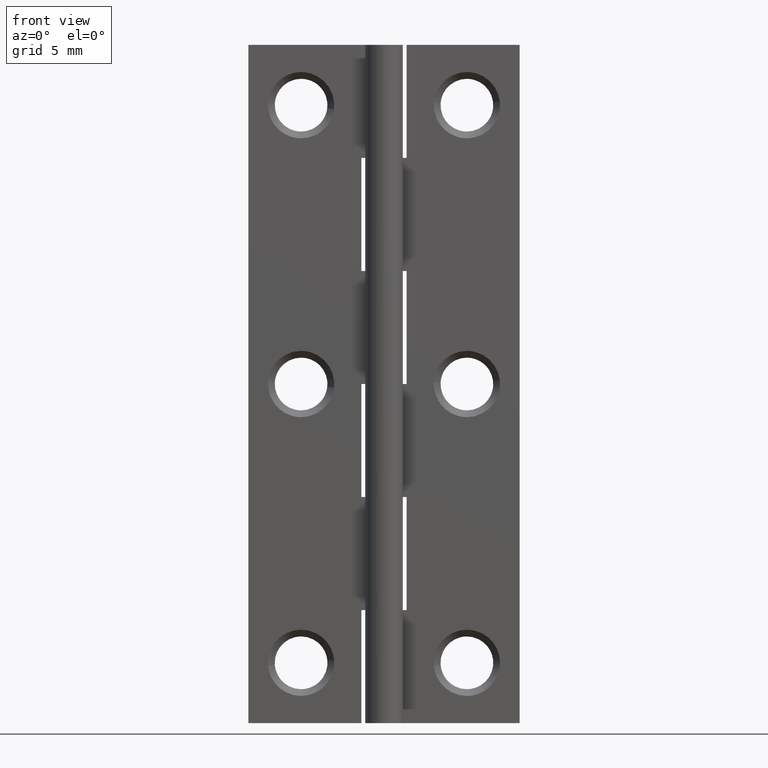
[diagram: clean part render]
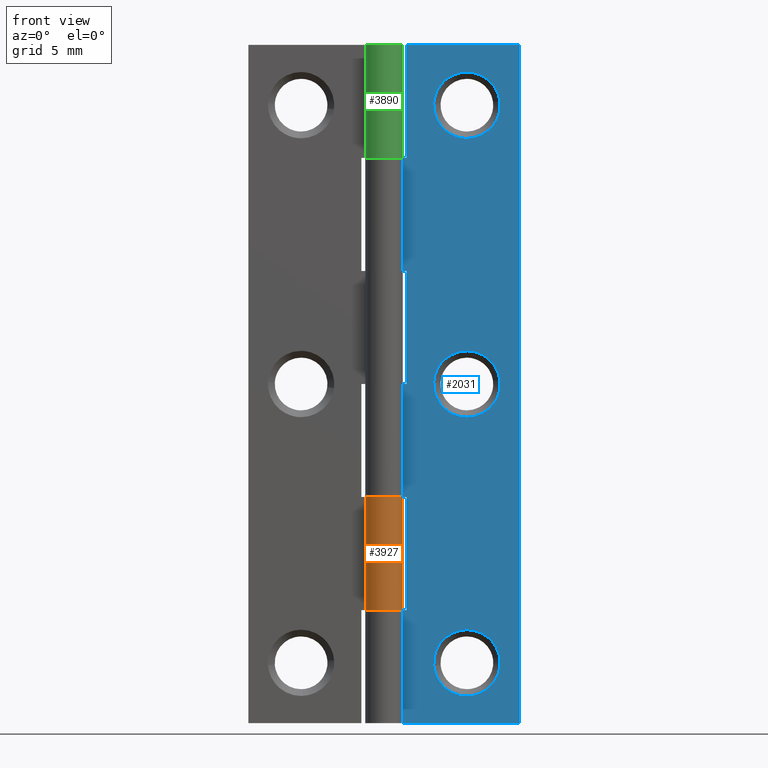
[diagram: same view with three faces highlighted in distinct colors, each labeled with its STEP entity id]
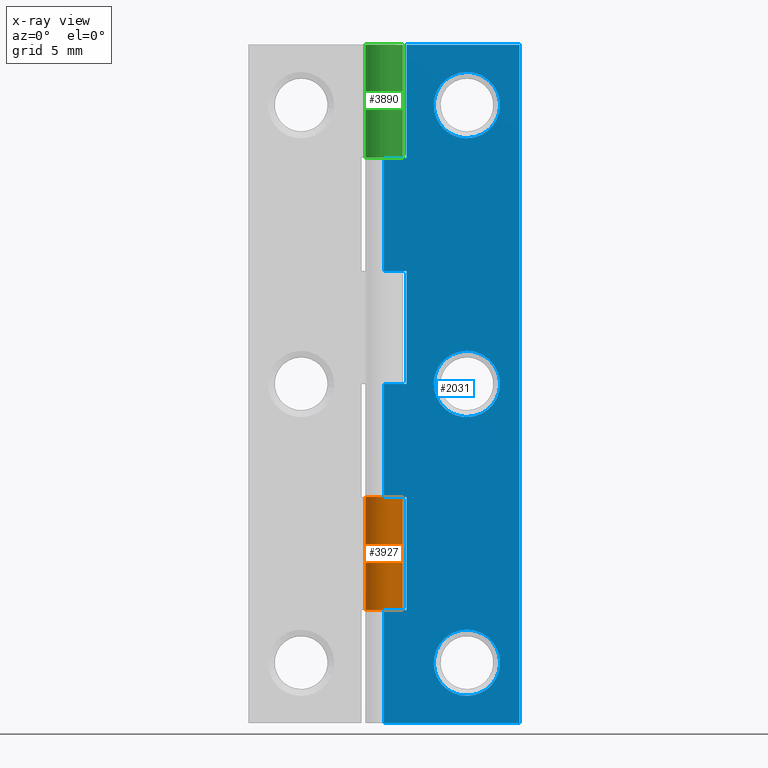
[diagram: x-ray of the same camera — body ghosted, the three highlighted faces saturated]
A machine part, front view with three faces highlighted in distinct colors.
The next image is the same camera in x-ray (body ghosted, the three faces saturated) — at least one of them is partly hidden behind the body in this view.
Their STEP definitions:

[orange] entity #3927 — the highlighted face is a freeform B-spline surface patch.
#3580=CARTESIAN_POINT('',(-1.035615758860396,0.700000000000000,15.0));
#3581=VERTEX_POINT('',#3580);
#3587=CARTESIAN_POINT('',(0.0,1.249999999999972,15.0));
#3588=VERTEX_POINT('',#3587);
#3589=CARTESIAN_POINT('',(0.0,1.250000000000000,15.0));
#3590=CARTESIAN_POINT('',(0.976852103636802,1.250000000000000,14.999999999999996));
#3591=CARTESIAN_POINT('',(1.212943245861843,0.302107070950246,15.0));
#3592=CARTESIAN_POINT('',(1.449034388086884,-0.645785858099508,14.999999999999996));
#3593=CARTESIAN_POINT('',(0.586301969977928,-1.103970108290981,15.0));
#3594=CARTESIAN_POINT('',(-0.276430448131027,-1.562154358482455,14.999999999999996));
#3595=CARTESIAN_POINT('',(-0.929541692514018,-0.835734552282107,15.0));
#3596=CARTESIAN_POINT('',(-1.582652936897008,-0.109314746081762,14.999999999999996));
#3597=CARTESIAN_POINT('',(-1.035615758860398,0.700000000000001,15.0));
#3605=(BOUNDED_CURVE()B_SPLINE_CURVE(2,(#3589,#3590,#3591,#3592,#3593,#3594,#3595,#3596,#3597),.UNSPECIFIED.,.F.,.U.)B_SPLINE_CURVE_WITH_KNOTS((3,2,2,2,3),(0.0,0.250000000000000,0.500000000000000,0.750000000000000,1.0),.UNSPECIFIED.)CURVE()GEOMETRIC_REPRESENTATION_ITEM()RATIONAL_B_SPLINE_CURVE((1.0,0.787935802194632,1.0,0.787935802194632,1.0,0.787935802194632,1.0,0.787935802194632,1.0))REPRESENTATION_ITEM(''));
#3606=EDGE_CURVE('',#3588,#3581,#3605,.T.);
#3664=CARTESIAN_POINT('',(0.0,1.249999999999972,7.500000000000000));
#3665=VERTEX_POINT('',#3664);
#3671=CARTESIAN_POINT('',(-1.035615758860396,0.700000000000000,7.500000000000000));
#3672=VERTEX_POINT('',#3671);
#3673=CARTESIAN_POINT('',(-1.035615758860398,0.700000000000002,7.500000000000000));
#3674=CARTESIAN_POINT('',(-1.582652936897009,-0.109314746081761,7.500000000000001));
#3675=CARTESIAN_POINT('',(-0.929541692514019,-0.835734552282107,7.500000000000000));
#3676=CARTESIAN_POINT('',(-0.276430448131029,-1.562154358482453,7.500000000000001));
#3677=CARTESIAN_POINT('',(0.586301969977927,-1.103970108290982,7.500000000000000));
#3678=CARTESIAN_POINT('',(1.449034388086884,-0.645785858099510,7.500000000000001));
#3679=CARTESIAN_POINT('',(1.212943245861843,0.302107070950246,7.500000000000000));
#3680=CARTESIAN_POINT('',(0.976852103636803,1.250000000000000,7.500000000000001));
#3681=CARTESIAN_POINT('',(0.0,1.249999999999972,7.500000000000000));
#3689=(BOUNDED_CURVE()B_SPLINE_CURVE(2,(#3673,#3674,#3675,#3676,#3677,#3678,#3679,#3680,#3681),.UNSPECIFIED.,.F.,.U.)B_SPLINE_CURVE_WITH_KNOTS((3,2,2,2,3),(0.0,0.250000000000000,0.500000000000000,0.750000000000000,1.0),.UNSPECIFIED.)CURVE()GEOMETRIC_REPRESENTATION_ITEM()RATIONAL_B_SPLINE_CURVE((1.0,0.787935802194633,1.0,0.787935802194633,1.0,0.787935802194633,1.0,0.787935802194633,1.0))REPRESENTATION_ITEM(''));
#3690=EDGE_CURVE('',#3672,#3665,#3689,.T.);
#3891=CARTESIAN_POINT('',(-1.004821075771521,0.743528483439176,15.187500000000000));
#3892=CARTESIAN_POINT('',(-1.004821075771521,0.743528483439176,7.307812499999999));
#3893=CARTESIAN_POINT('',(-1.950809181486082,-0.534901068653333,15.187500000000002));
#3894=CARTESIAN_POINT('',(-1.950809181486082,-0.534901068653333,7.307812499999999));
#3895=CARTESIAN_POINT('',(-0.485064798854316,-1.152046935203779,15.187500000000000));
#3896=CARTESIAN_POINT('',(-0.485064798854316,-1.152046935203779,7.307812499999999));
#3897=CARTESIAN_POINT('',(0.980679583777450,-1.769192801754226,15.187500000000002));
#3898=CARTESIAN_POINT('',(0.980679583777450,-1.769192801754226,7.307812499999999));
#3899=CARTESIAN_POINT('',(1.234036391396717,-0.199133585084404,15.187500000000000));
#3900=CARTESIAN_POINT('',(1.234036391396717,-0.199133585084404,7.307812499999999));
#3901=CARTESIAN_POINT('',(1.487393199015984,1.370925631585418,15.187500000000002));
#3902=CARTESIAN_POINT('',(1.487393199015984,1.370925631585418,7.307812499999999));
#3903=CARTESIAN_POINT('',(-0.098073869659805,1.246146667166410,15.187500000000000));
#3904=CARTESIAN_POINT('',(-0.098073869659805,1.246146667166410,7.307812499999999));
#3912=(BOUNDED_SURFACE()B_SPLINE_SURFACE(1,2,((#3891,#3893,#3895,#3897,#3899,#3901,#3903),(#3892,#3894,#3896,#3898,#3900,#3902,#3904)),.UNSPECIFIED.,.F.,.F.,.U.)B_SPLINE_SURFACE_WITH_KNOTS((2,2),(3,2,2,3),(0.0,7.879687500000003),(0.0,2.429667178109279,4.859334356218558,7.289001534327838),.UNSPECIFIED.)GEOMETRIC_REPRESENTATION_ITEM()RATIONAL_B_SPLINE_SURFACE(((1.0,0.617951097721073,1.0,0.617951097721073,1.0,0.617951097721073,1.0),(1.0,0.617951097721073,1.0,0.617951097721073,1.0,0.617951097721073,1.0)))REPRESENTATION_ITEM('')SURFACE());
#3913=ORIENTED_EDGE('',*,*,#3606,.T.);
#3914=CARTESIAN_POINT('',(-1.035615758860396,0.700000000000000,15.0));
#3915=CARTESIAN_POINT('',(-1.035615758860396,0.700000000000000,7.500000000000000));
#3916=QUASI_UNIFORM_CURVE('',1,(#3914,#3915),.UNSPECIFIED.,.F.,.U.);
#3917=EDGE_CURVE('',#3581,#3672,#3916,.T.);
#3918=ORIENTED_EDGE('',*,*,#3917,.T.);
#3919=ORIENTED_EDGE('',*,*,#3690,.T.);
#3920=CARTESIAN_POINT('',(0.0,1.249999999999972,15.0));
#3921=CARTESIAN_POINT('',(0.0,1.249999999999972,7.500000000000000));
#3922=QUASI_UNIFORM_CURVE('',1,(#3920,#3921),.UNSPECIFIED.,.F.,.U.);
#3923=EDGE_CURVE('',#3588,#3665,#3922,.T.);
#3924=ORIENTED_EDGE('',*,*,#3923,.F.);
#3925=EDGE_LOOP('',(#3913,#3918,#3919,#3924));
#3926=FACE_OUTER_BOUND('',#3925,.T.);
#3927=ADVANCED_FACE('',(#3926),#3912,.T.);

[blue] entity #2031 — the highlighted face is a freeform B-spline surface patch.
#326=CARTESIAN_POINT('',(7.685632225558621,0.749999999999847,41.251021462429691));
#327=VERTEX_POINT('',#326);
#333=CARTESIAN_POINT('',(5.500000000000000,0.750000000000000,43.200000000000003));
#334=VERTEX_POINT('',#333);
#335=CARTESIAN_POINT('',(7.685632225558621,0.749999999999847,41.251021462429691));
#336=CARTESIAN_POINT('',(7.461790612580012,0.750000000000000,43.199999999999996));
#337=CARTESIAN_POINT('',(5.500000000000000,0.750000000000000,43.200000000000003));
#345=(BOUNDED_CURVE()B_SPLINE_CURVE(2,(#335,#336,#337),.UNSPECIFIED.,.F.,.U.)B_SPLINE_CURVE_WITH_KNOTS((3,3),(0.269767755876746,0.500000000000000),.UNSPECIFIED.)CURVE()GEOMETRIC_REPRESENTATION_ITEM()RATIONAL_B_SPLINE_CURVE((0.957343736460394,0.730266147776382,1.0))REPRESENTATION_ITEM(''));
#346=EDGE_CURVE('',#327,#334,#345,.T.);
#348=CARTESIAN_POINT('',(3.304103443468190,0.749999999994797,41.134306787001357));
#349=VERTEX_POINT('',#348);
#350=CARTESIAN_POINT('',(5.500000000000000,0.750000000000000,43.200000000000003));
#351=CARTESIAN_POINT('',(3.430446652853460,0.750000000000000,43.200000000000010));
#352=CARTESIAN_POINT('',(3.304103443468190,0.749999999994797,41.134306787001357));
#360=(BOUNDED_CURVE()B_SPLINE_CURVE(2,(#350,#351,#352),.UNSPECIFIED.,.F.,.U.)B_SPLINE_CURVE_WITH_KNOTS((3,3),(0.500000000000000,0.739332962238141),.UNSPECIFIED.)CURVE()GEOMETRIC_REPRESENTATION_ITEM()RATIONAL_B_SPLINE_CURVE((1.0,0.719603993287649,0.976072041665000))REPRESENTATION_ITEM(''));
#361=EDGE_CURVE('',#334,#349,#360,.T.);
#456=CARTESIAN_POINT('',(5.500000000000000,0.750000000000000,38.799999999999997));
#457=VERTEX_POINT('',#456);
#458=CARTESIAN_POINT('',(3.304103443468190,0.749999999994797,41.134306787001364));
#459=CARTESIAN_POINT('',(3.300000000000000,0.750000000000000,41.067216079281316));
#460=CARTESIAN_POINT('',(3.299999999999999,0.750000000000000,41.0));
#461=CARTESIAN_POINT('',(3.300000000000000,0.750000000000000,38.800000000000004));
#462=CARTESIAN_POINT('',(5.500000000000000,0.750000000000000,38.799999999999997));
#470=(BOUNDED_CURVE()B_SPLINE_CURVE(2,(#458,#459,#460,#461,#462),.UNSPECIFIED.,.F.,.U.)B_SPLINE_CURVE_WITH_KNOTS((3,2,3),(0.739332962238142,0.750000000000000,1.0),.UNSPECIFIED.)CURVE()GEOMETRIC_REPRESENTATION_ITEM()RATIONAL_B_SPLINE_CURVE((0.976072041665000,0.987502787898899,1.0,0.707106781186548,1.0))REPRESENTATION_ITEM(''));
#471=EDGE_CURVE('',#349,#457,#470,.T.);
#473=CARTESIAN_POINT('',(5.500000000000000,0.750000000000000,38.799999999999997));
#474=CARTESIAN_POINT('',(7.700000000000000,0.750000000000000,38.800000000000004));
#475=CARTESIAN_POINT('',(7.700000000000000,0.750000000000000,41.0));
#476=CARTESIAN_POINT('',(7.700000000000000,0.750000000000000,41.125921917056544));
#477=CARTESIAN_POINT('',(7.685632225558621,0.749999999999847,41.251021462429705));
#485=(BOUNDED_CURVE()B_SPLINE_CURVE(2,(#473,#474,#475,#476,#477),.UNSPECIFIED.,.F.,.U.)B_SPLINE_CURVE_WITH_KNOTS((3,2,3),(0.0,0.250000000000000,0.269767755876746),.UNSPECIFIED.)CURVE()GEOMETRIC_REPRESENTATION_ITEM()RATIONAL_B_SPLINE_CURVE((1.0,0.707106781186548,1.0,0.976840633410165,0.957343736460393))REPRESENTATION_ITEM(''));
#486=EDGE_CURVE('',#457,#327,#485,.T.);
#654=CARTESIAN_POINT('',(7.685632225558621,0.749999999999847,22.751021462429691));
#655=VERTEX_POINT('',#654);
#661=CARTESIAN_POINT('',(5.500000000000000,0.750000000000000,24.699999999999999));
#662=VERTEX_POINT('',#661);
#663=CARTESIAN_POINT('',(7.685632225558621,0.749999999999847,22.751021462429694));
#664=CARTESIAN_POINT('',(7.461790612580018,0.750000000000000,24.700000000000003));
#665=CARTESIAN_POINT('',(5.500000000000000,0.750000000000000,24.699999999999999));
#673=(BOUNDED_CURVE()B_SPLINE_CURVE(2,(#663,#664,#665),.UNSPECIFIED.,.F.,.U.)B_SPLINE_CURVE_WITH_KNOTS((3,3),(0.269767755876746,0.500000000000000),.UNSPECIFIED.)CURVE()GEOMETRIC_REPRESENTATION_ITEM()RATIONAL_B_SPLINE_CURVE((0.957343736460394,0.730266147776382,1.0))REPRESENTATION_ITEM(''));
#674=EDGE_CURVE('',#655,#662,#673,.T.);
#676=CARTESIAN_POINT('',(3.304103443468189,0.749999999994797,22.634306787001350));
#677=VERTEX_POINT('',#676);
#678=CARTESIAN_POINT('',(5.500000000000000,0.750000000000000,24.699999999999999));
#679=CARTESIAN_POINT('',(3.430446652853432,0.750000000000000,24.700000000000003));
#680=CARTESIAN_POINT('',(3.304103443468189,0.749999999994797,22.634306787001357));
#688=(BOUNDED_CURVE()B_SPLINE_CURVE(2,(#678,#679,#680),.UNSPECIFIED.,.F.,.U.)B_SPLINE_CURVE_WITH_KNOTS((3,3),(0.500000000000000,0.739332962238143),.UNSPECIFIED.)CURVE()GEOMETRIC_REPRESENTATION_ITEM()RATIONAL_B_SPLINE_CURVE((1.0,0.719603993287647,0.976072041665004))REPRESENTATION_ITEM(''));
#689=EDGE_CURVE('',#662,#677,#688,.T.);
#784=CARTESIAN_POINT('',(5.500000000000000,0.750000000000000,20.300000000000001));
#785=VERTEX_POINT('',#784);
#786=CARTESIAN_POINT('',(3.304103443468189,0.749999999994797,22.634306787001350));
#787=CARTESIAN_POINT('',(3.299999999999999,0.750000000000000,22.567216079281309));
#788=CARTESIAN_POINT('',(3.299999999999999,0.750000000000000,22.500000000000000));
#789=CARTESIAN_POINT('',(3.300000000000000,0.750000000000000,20.299999999999990));
#790=CARTESIAN_POINT('',(5.500000000000000,0.750000000000000,20.300000000000001));
#798=(BOUNDED_CURVE()B_SPLINE_CURVE(2,(#786,#787,#788,#789,#790),.UNSPECIFIED.,.F.,.U.)B_SPLINE_CURVE_WITH_KNOTS((3,2,3),(0.739332962238142,0.750000000000000,1.0),.UNSPECIFIED.)CURVE()GEOMETRIC_REPRESENTATION_ITEM()RATIONAL_B_SPLINE_CURVE((0.976072041665002,0.987502787898900,1.0,0.707106781186548,1.0))REPRESENTATION_ITEM(''));
#799=EDGE_CURVE('',#677,#785,#798,.T.);
#801=CARTESIAN_POINT('',(5.500000000000000,0.750000000000000,20.300000000000001));
#802=CARTESIAN_POINT('',(7.700000000000000,0.750000000000000,20.299999999999990));
#803=CARTESIAN_POINT('',(7.700000000000000,0.750000000000000,22.500000000000000));
#804=CARTESIAN_POINT('',(7.700000000000000,0.750000000000000,22.625921917056534));
#805=CARTESIAN_POINT('',(7.685632225558621,0.749999999999847,22.751021462429694));
#813=(BOUNDED_CURVE()B_SPLINE_CURVE(2,(#801,#802,#803,#804,#805),.UNSPECIFIED.,.F.,.U.)B_SPLINE_CURVE_WITH_KNOTS((3,2,3),(0.0,0.250000000000000,0.269767755876746),.UNSPECIFIED.)CURVE()GEOMETRIC_REPRESENTATION_ITEM()RATIONAL_B_SPLINE_CURVE((1.0,0.707106781186548,1.0,0.976840633410165,0.957343736460394))REPRESENTATION_ITEM(''));
#814=EDGE_CURVE('',#785,#655,#813,.T.);
#988=CARTESIAN_POINT('',(6.683271745706598,0.749999999992486,2.145311892569125));
#989=VERTEX_POINT('',#988);
#995=CARTESIAN_POINT('',(5.500000000000000,0.750000000000000,6.200000000000001));
#996=VERTEX_POINT('',#995);
#997=CARTESIAN_POINT('',(5.500000000000000,0.750000000000000,6.200000000000001));
#998=CARTESIAN_POINT('',(7.700000000000000,0.750000000000000,6.200000000000001));
#999=CARTESIAN_POINT('',(7.700000000000000,0.750000000000000,4.0));
#1000=CARTESIAN_POINT('',(7.700000000000000,0.750000000000000,2.793973956954153));
#1001=CARTESIAN_POINT('',(6.683271745706598,0.749999999992486,2.145311892569126));
#1009=(BOUNDED_CURVE()B_SPLINE_CURVE(2,(#997,#998,#999,#1000,#1001),.UNSPECIFIED.,.F.,.U.)B_SPLINE_CURVE_WITH_KNOTS((3,2,3),(0.0,0.250000000000000,0.407950112607662),.UNSPECIFIED.)CURVE()GEOMETRIC_REPRESENTATION_ITEM()RATIONAL_B_SPLINE_CURVE((1.0,0.707106781186548,1.0,0.814949932425578,0.863729296942640))REPRESENTATION_ITEM(''));
#1010=EDGE_CURVE('',#996,#989,#1009,.T.);
#1012=CARTESIAN_POINT('',(3.306781865765292,0.749999999945224,3.827389988977925));
#1013=VERTEX_POINT('',#1012);
#1014=CARTESIAN_POINT('',(3.306781865765292,0.749999999945224,3.827389988977925));
#1015=CARTESIAN_POINT('',(3.299999999999999,0.750000000000000,3.913561764164677));
#1016=CARTESIAN_POINT('',(3.299999999999999,0.750000000000000,4.0));
#1017=CARTESIAN_POINT('',(3.300000000000000,0.750000000000000,6.200000000000001));
#1018=CARTESIAN_POINT('',(5.500000000000000,0.750000000000000,6.200000000000001));
#1026=(BOUNDED_CURVE()B_SPLINE_CURVE(2,(#1014,#1015,#1016,#1017,#1018),.UNSPECIFIED.,.F.,.U.)B_SPLINE_CURVE_WITH_KNOTS((3,2,3),(0.736331300567656,0.750000000000000,1.0),.UNSPECIFIED.)CURVE()GEOMETRIC_REPRESENTATION_ITEM()RATIONAL_B_SPLINE_CURVE((0.969723356035934,0.983986122505068,1.0,0.707106781186548,1.0))REPRESENTATION_ITEM(''));
#1027=EDGE_CURVE('',#1013,#996,#1026,.T.);
#1131=CARTESIAN_POINT('',(5.500000000000000,0.750000000000000,1.800000000000000));
#1132=VERTEX_POINT('',#1131);
#1133=CARTESIAN_POINT('',(5.500000000000000,0.750000000000000,1.800000000000000));
#1134=CARTESIAN_POINT('',(3.466340919126763,0.750000000000000,1.800000000000000));
#1135=CARTESIAN_POINT('',(3.306781865765292,0.749999999945224,3.827389988977925));
#1143=(BOUNDED_CURVE()B_SPLINE_CURVE(2,(#1133,#1134,#1135),.UNSPECIFIED.,.F.,.U.)B_SPLINE_CURVE_WITH_KNOTS((3,3),(0.500000000000000,0.736331300567656),.UNSPECIFIED.)CURVE()GEOMETRIC_REPRESENTATION_ITEM()RATIONAL_B_SPLINE_CURVE((1.0,0.723120658681479,0.969723356035934))REPRESENTATION_ITEM(''));
#1144=EDGE_CURVE('',#1132,#1013,#1143,.T.);
#1146=CARTESIAN_POINT('',(6.683271745706598,0.749999999992486,2.145311892569126));
#1147=CARTESIAN_POINT('',(6.142021721990017,0.750000000000000,1.800000000000000));
#1148=CARTESIAN_POINT('',(5.500000000000000,0.750000000000000,1.800000000000000));
#1156=(BOUNDED_CURVE()B_SPLINE_CURVE(2,(#1146,#1147,#1148),.UNSPECIFIED.,.F.,.U.)B_SPLINE_CURVE_WITH_KNOTS((3,3),(0.407950112607662,0.500000000000000),.UNSPECIFIED.)CURVE()GEOMETRIC_REPRESENTATION_ITEM()RATIONAL_B_SPLINE_CURVE((0.863729296942640,0.892156848760969,1.0))REPRESENTATION_ITEM(''));
#1157=EDGE_CURVE('',#989,#1132,#1156,.T.);
#1296=CARTESIAN_POINT('',(1.500000000000000,0.750000000000028,22.500000000000000));
#1297=VERTEX_POINT('',#1296);
#1340=CARTESIAN_POINT('',(0.0,0.750000000000000,22.500000000000000));
#1341=VERTEX_POINT('',#1340);
#1361=CARTESIAN_POINT('',(1.500000000000000,0.750000000000028,22.500000000000000));
#1362=CARTESIAN_POINT('',(0.0,0.750000000000000,22.500000000000000));
#1363=QUASI_UNIFORM_CURVE('',1,(#1361,#1362),.UNSPECIFIED.,.F.,.U.);
#1364=EDGE_CURVE('',#1297,#1341,#1363,.T.);
#1376=CARTESIAN_POINT('',(0.0,0.750000000000000,30.0));
#1377=VERTEX_POINT('',#1376);
#1432=CARTESIAN_POINT('',(1.500000000000000,0.750000000000028,30.0));
#1433=VERTEX_POINT('',#1432);
#1439=CARTESIAN_POINT('',(0.0,0.750000000000000,30.0));
#1440=CARTESIAN_POINT('',(1.500000000000000,0.750000000000028,30.0));
#1441=QUASI_UNIFORM_CURVE('',1,(#1439,#1440),.UNSPECIFIED.,.F.,.U.);
#1442=EDGE_CURVE('',#1377,#1433,#1441,.T.);
#1459=CARTESIAN_POINT('',(1.500000000000000,0.750000000000028,30.0));
#1460=CARTESIAN_POINT('',(1.500000000000000,0.750000000000028,22.500000000000000));
#1461=QUASI_UNIFORM_CURVE('',1,(#1459,#1460),.UNSPECIFIED.,.F.,.U.);
#1462=EDGE_CURVE('',#1433,#1297,#1461,.T.);
#1472=CARTESIAN_POINT('',(1.500000000000000,0.750000000000028,7.500000000000000));
#1473=VERTEX_POINT('',#1472);
#1516=CARTESIAN_POINT('',(0.0,0.750000000000000,7.500000000000000));
#1517=VERTEX_POINT('',#1516);
#1537=CARTESIAN_POINT('',(1.500000000000000,0.750000000000028,7.500000000000000));
#1538=CARTESIAN_POINT('',(0.0,0.750000000000000,7.500000000000000));
#1539=QUASI_UNIFORM_CURVE('',1,(#1537,#1538),.UNSPECIFIED.,.F.,.U.);
#1540=EDGE_CURVE('',#1473,#1517,#1539,.T.);
#1552=CARTESIAN_POINT('',(0.0,0.750000000000000,15.0));
#1553=VERTEX_POINT('',#1552);
#1608=CARTESIAN_POINT('',(1.500000000000000,0.750000000000028,15.0));
#1609=VERTEX_POINT('',#1608);
#1615=CARTESIAN_POINT('',(0.0,0.750000000000000,15.0));
#1616=CARTESIAN_POINT('',(1.500000000000000,0.750000000000028,15.0));
#1617=QUASI_UNIFORM_CURVE('',1,(#1615,#1616),.UNSPECIFIED.,.F.,.U.);
#1618=EDGE_CURVE('',#1553,#1609,#1617,.T.);
#1635=CARTESIAN_POINT('',(1.500000000000000,0.750000000000028,15.0));
#1636=CARTESIAN_POINT('',(1.500000000000000,0.750000000000028,7.500000000000000));
#1637=QUASI_UNIFORM_CURVE('',1,(#1635,#1636),.UNSPECIFIED.,.F.,.U.);
#1638=EDGE_CURVE('',#1609,#1473,#1637,.T.);
#1648=CARTESIAN_POINT('',(1.500000000000000,0.750000000000000,45.0));
#1649=VERTEX_POINT('',#1648);
#1664=CARTESIAN_POINT('',(1.500000000000000,0.750000000000028,37.500000000000000));
#1665=VERTEX_POINT('',#1664);
#1671=CARTESIAN_POINT('',(1.500000000000000,0.750000000000000,45.0));
#1672=CARTESIAN_POINT('',(1.500000000000000,0.750000000000028,37.500000000000000));
#1673=QUASI_UNIFORM_CURVE('',1,(#1671,#1672),.UNSPECIFIED.,.F.,.U.);
#1674=EDGE_CURVE('',#1649,#1665,#1673,.T.);
#1720=CARTESIAN_POINT('',(0.0,0.750000000000000,37.500000000000000));
#1721=VERTEX_POINT('',#1720);
#1741=CARTESIAN_POINT('',(1.500000000000000,0.750000000000028,37.500000000000000));
#1742=CARTESIAN_POINT('',(0.0,0.750000000000000,37.500000000000000));
#1743=QUASI_UNIFORM_CURVE('',1,(#1741,#1742),.UNSPECIFIED.,.F.,.U.);
#1744=EDGE_CURVE('',#1665,#1721,#1743,.T.);
#1756=CARTESIAN_POINT('',(0.0,0.750000000000000,0.0));
#1757=VERTEX_POINT('',#1756);
#1812=CARTESIAN_POINT('',(9.0,0.750000000000000,0.0));
#1813=VERTEX_POINT('',#1812);
#1819=CARTESIAN_POINT('',(0.0,0.750000000000000,0.0));
#1820=CARTESIAN_POINT('',(9.0,0.750000000000000,0.0));
#1821=QUASI_UNIFORM_CURVE('',1,(#1819,#1820),.UNSPECIFIED.,.F.,.U.);
#1822=EDGE_CURVE('',#1757,#1813,#1821,.T.);
#1840=CARTESIAN_POINT('',(9.0,0.750000000000000,45.0));
#1841=VERTEX_POINT('',#1840);
#1842=CARTESIAN_POINT('',(1.500000000000000,0.750000000000000,45.0));
#1843=CARTESIAN_POINT('',(9.0,0.750000000000000,45.0));
#1844=QUASI_UNIFORM_CURVE('',1,(#1842,#1843),.UNSPECIFIED.,.F.,.U.);
#1845=EDGE_CURVE('',#1649,#1841,#1844,.T.);
#1972=CARTESIAN_POINT('',(9.0,0.750000000000000,45.0));
#1973=CARTESIAN_POINT('',(9.0,0.750000000000000,0.0));
#1974=QUASI_UNIFORM_CURVE('',1,(#1972,#1973),.UNSPECIFIED.,.F.,.U.);
#1975=EDGE_CURVE('',#1841,#1813,#1974,.T.);
#1980=CARTESIAN_POINT('',(-0.449549982556253,0.750000000000000,-2.247749912781269));
#1981=CARTESIAN_POINT('',(-0.449549982556253,0.750000000000000,47.247751119775323));
#1982=CARTESIAN_POINT('',(9.449550223955063,0.750000000000000,-2.247749912781269));
#1983=CARTESIAN_POINT('',(9.449550223955063,0.750000000000000,47.247751119775323));
#1984=B_SPLINE_SURFACE_WITH_KNOTS('',1,1,((#1980,#1982),(#1981,#1983)),.UNSPECIFIED.,.F.,.F.,.U.,(2,2),(2,2),(0.0,49.495501032556589),(0.0,9.899100206511315),.UNSPECIFIED.);
#1985=CARTESIAN_POINT('',(0.0,0.750000000000000,37.500000000000000));
#1986=CARTESIAN_POINT('',(0.0,0.750000000000000,30.0));
#1987=QUASI_UNIFORM_CURVE('',1,(#1985,#1986),.UNSPECIFIED.,.F.,.U.);
#1988=EDGE_CURVE('',#1721,#1377,#1987,.T.);
#1989=ORIENTED_EDGE('',*,*,#1988,.T.);
#1990=ORIENTED_EDGE('',*,*,#1442,.T.);
#1991=ORIENTED_EDGE('',*,*,#1462,.T.);
#1992=ORIENTED_EDGE('',*,*,#1364,.T.);
#1993=CARTESIAN_POINT('',(0.0,0.750000000000000,22.500000000000000));
#1994=CARTESIAN_POINT('',(0.0,0.750000000000000,15.0));
#1995=QUASI_UNIFORM_CURVE('',1,(#1993,#1994),.UNSPECIFIED.,.F.,.U.);
#1996=EDGE_CURVE('',#1341,#1553,#1995,.T.);
#1997=ORIENTED_EDGE('',*,*,#1996,.T.);
#1998=ORIENTED_EDGE('',*,*,#1618,.T.);
#1999=ORIENTED_EDGE('',*,*,#1638,.T.);
#2000=ORIENTED_EDGE('',*,*,#1540,.T.);
#2001=CARTESIAN_POINT('',(0.0,0.750000000000000,7.500000000000000));
#2002=CARTESIAN_POINT('',(0.0,0.750000000000000,0.0));
#2003=QUASI_UNIFORM_CURVE('',1,(#2001,#2002),.UNSPECIFIED.,.F.,.U.);
#2004=EDGE_CURVE('',#1517,#1757,#2003,.T.);
#2005=ORIENTED_EDGE('',*,*,#2004,.T.);
#2006=ORIENTED_EDGE('',*,*,#1822,.T.);
#2007=ORIENTED_EDGE('',*,*,#1975,.F.);
#2008=ORIENTED_EDGE('',*,*,#1845,.F.);
#2009=ORIENTED_EDGE('',*,*,#1674,.T.);
#2010=ORIENTED_EDGE('',*,*,#1744,.T.);
#2011=EDGE_LOOP('',(#1989,#1990,#1991,#1992,#1997,#1998,#1999,#2000,#2005,#2006,#2007,#2008,#2009,#2010));
#2012=FACE_OUTER_BOUND('',#2011,.T.);
#2013=ORIENTED_EDGE('',*,*,#1144,.T.);
#2014=ORIENTED_EDGE('',*,*,#1027,.T.);
#2015=ORIENTED_EDGE('',*,*,#1010,.T.);
#2016=ORIENTED_EDGE('',*,*,#1157,.T.);
#2017=EDGE_LOOP('',(#2013,#2014,#2015,#2016));
#2018=FACE_BOUND('',#2017,.T.);
#2019=ORIENTED_EDGE('',*,*,#689,.F.);
#2020=ORIENTED_EDGE('',*,*,#674,.F.);
#2021=ORIENTED_EDGE('',*,*,#814,.F.);
#2022=ORIENTED_EDGE('',*,*,#799,.F.);
#2023=EDGE_LOOP('',(#2019,#2020,#2021,#2022));
#2024=FACE_BOUND('',#2023,.T.);
#2025=ORIENTED_EDGE('',*,*,#361,.F.);
#2026=ORIENTED_EDGE('',*,*,#346,.F.);
#2027=ORIENTED_EDGE('',*,*,#486,.F.);
#2028=ORIENTED_EDGE('',*,*,#471,.F.);
#2029=EDGE_LOOP('',(#2025,#2026,#2027,#2028));
#2030=FACE_BOUND('',#2029,.T.);
#2031=ADVANCED_FACE('',(#2012,#2018,#2024,#2030),#1984,.F.);

[green] entity #3890 — the highlighted face is a freeform B-spline surface patch.
#3389=CARTESIAN_POINT('',(0.0,1.250000000000000,37.500000000000000));
#3390=VERTEX_POINT('',#3389);
#3396=CARTESIAN_POINT('',(-1.035615758860396,0.700000000000000,37.500000000000000));
#3397=VERTEX_POINT('',#3396);
#3398=CARTESIAN_POINT('',(0.0,1.250000000000000,37.500000000000000));
#3399=CARTESIAN_POINT('',(0.976852103636802,1.250000000000000,37.500000000000000));
#3400=CARTESIAN_POINT('',(1.212943245861843,0.302107070950246,37.500000000000000));
#3401=CARTESIAN_POINT('',(1.449034388086884,-0.645785858099508,37.500000000000000));
#3402=CARTESIAN_POINT('',(0.586301969977928,-1.103970108290981,37.500000000000000));
#3403=CARTESIAN_POINT('',(-0.276430448131027,-1.562154358482455,37.500000000000000));
#3404=CARTESIAN_POINT('',(-0.929541692514018,-0.835734552282107,37.500000000000000));
#3405=CARTESIAN_POINT('',(-1.582652936897008,-0.109314746081762,37.500000000000000));
#3406=CARTESIAN_POINT('',(-1.035615758860398,0.700000000000001,37.500000000000000));
#3414=(BOUNDED_CURVE()B_SPLINE_CURVE(2,(#3398,#3399,#3400,#3401,#3402,#3403,#3404,#3405,#3406),.UNSPECIFIED.,.F.,.U.)B_SPLINE_CURVE_WITH_KNOTS((3,2,2,2,3),(0.0,0.250000000000000,0.500000000000000,0.750000000000000,1.0),.UNSPECIFIED.)CURVE()GEOMETRIC_REPRESENTATION_ITEM()RATIONAL_B_SPLINE_CURVE((1.0,0.787935802194632,1.0,0.787935802194632,1.0,0.787935802194632,1.0,0.787935802194632,1.0))REPRESENTATION_ITEM(''));
#3415=EDGE_CURVE('',#3390,#3397,#3414,.T.);
#3756=CARTESIAN_POINT('',(-1.035615758860396,0.700000000000000,45.0));
#3757=VERTEX_POINT('',#3756);
#3763=CARTESIAN_POINT('',(0.0,1.250000000000000,45.0));
#3764=VERTEX_POINT('',#3763);
#3765=CARTESIAN_POINT('',(0.0,1.250000000000000,45.0));
#3766=CARTESIAN_POINT('',(0.976852103636802,1.250000000000000,45.000000000000007));
#3767=CARTESIAN_POINT('',(1.212943245861843,0.302107070950246,45.0));
#3768=CARTESIAN_POINT('',(1.449034388086884,-0.645785858099508,45.000000000000007));
#3769=CARTESIAN_POINT('',(0.586301969977928,-1.103970108290981,45.0));
#3770=CARTESIAN_POINT('',(-0.276430448131027,-1.562154358482455,45.000000000000007));
#3771=CARTESIAN_POINT('',(-0.929541692514018,-0.835734552282107,45.0));
#3772=CARTESIAN_POINT('',(-1.582652936897008,-0.109314746081762,45.000000000000007));
#3773=CARTESIAN_POINT('',(-1.035615758860398,0.700000000000001,45.0));
#3781=(BOUNDED_CURVE()B_SPLINE_CURVE(2,(#3765,#3766,#3767,#3768,#3769,#3770,#3771,#3772,#3773),.UNSPECIFIED.,.F.,.U.)B_SPLINE_CURVE_WITH_KNOTS((3,2,2,2,3),(0.0,0.250000000000000,0.500000000000000,0.750000000000000,1.0),.UNSPECIFIED.)CURVE()GEOMETRIC_REPRESENTATION_ITEM()RATIONAL_B_SPLINE_CURVE((1.0,0.787935802194632,1.0,0.787935802194632,1.0,0.787935802194632,1.0,0.787935802194632,1.0))REPRESENTATION_ITEM(''));
#3782=EDGE_CURVE('',#3764,#3757,#3781,.T.);
#3854=CARTESIAN_POINT('',(-1.029467750936743,0.709010683827291,45.187500000000007));
#3855=CARTESIAN_POINT('',(-1.029467750936743,0.709010683827291,37.307812499999990));
#3856=CARTESIAN_POINT('',(-1.915513659105133,-0.577508277191651,45.187500000000007));
#3857=CARTESIAN_POINT('',(-1.915513659105133,-0.577508277191651,37.307812499999997));
#3858=CARTESIAN_POINT('',(-0.466014708386679,-1.159883740539231,45.187500000000007));
#3859=CARTESIAN_POINT('',(-0.466014708386679,-1.159883740539231,37.307812499999990));
#3860=CARTESIAN_POINT('',(0.983484242331774,-1.742259203886810,45.187500000000007));
#3861=CARTESIAN_POINT('',(0.983484242331774,-1.742259203886810,37.307812499999997));
#3862=CARTESIAN_POINT('',(1.233841879149459,-0.200335262140568,45.187500000000007));
#3863=CARTESIAN_POINT('',(1.233841879149459,-0.200335262140568,37.307812499999990));
#3864=CARTESIAN_POINT('',(1.484199515967145,1.341588679605674,45.187500000000007));
#3865=CARTESIAN_POINT('',(1.484199515967145,1.341588679605674,37.307812499999997));
#3866=CARTESIAN_POINT('',(-0.075095591063942,1.247742221856244,45.187500000000007));
#3867=CARTESIAN_POINT('',(-0.075095591063942,1.247742221856244,37.307812499999990));
#3875=(BOUNDED_SURFACE()B_SPLINE_SURFACE(1,2,((#3854,#3856,#3858,#3860,#3862,#3864,#3866),(#3855,#3857,#3859,#3861,#3863,#3865,#3867)),.UNSPECIFIED.,.F.,.F.,.U.)B_SPLINE_SURFACE_WITH_KNOTS((2,2),(3,2,2,3),(0.0,7.879687500000021),(0.0,2.402755865417381,4.805511730834763,7.208267596252144),.UNSPECIFIED.)GEOMETRIC_REPRESENTATION_ITEM()RATIONAL_B_SPLINE_SURFACE(((1.0,0.624788514543960,1.0,0.624788514543960,1.0,0.624788514543960,1.0),(1.0,0.624788514543960,1.0,0.624788514543960,1.0,0.624788514543960,1.0)))REPRESENTATION_ITEM('')SURFACE());
#3876=CARTESIAN_POINT('',(-1.035615758860396,0.700000000000000,45.0));
#3877=CARTESIAN_POINT('',(-1.035615758860396,0.700000000000000,37.500000000000000));
#3878=QUASI_UNIFORM_CURVE('',1,(#3876,#3877),.UNSPECIFIED.,.F.,.U.);
#3879=EDGE_CURVE('',#3757,#3397,#3878,.T.);
#3880=ORIENTED_EDGE('',*,*,#3879,.T.);
#3881=ORIENTED_EDGE('',*,*,#3415,.F.);
#3882=CARTESIAN_POINT('',(0.0,1.250000000000000,45.0));
#3883=CARTESIAN_POINT('',(0.0,1.250000000000000,37.500000000000000));
#3884=QUASI_UNIFORM_CURVE('',1,(#3882,#3883),.UNSPECIFIED.,.F.,.U.);
#3885=EDGE_CURVE('',#3764,#3390,#3884,.T.);
#3886=ORIENTED_EDGE('',*,*,#3885,.F.);
#3887=ORIENTED_EDGE('',*,*,#3782,.T.);
#3888=EDGE_LOOP('',(#3880,#3881,#3886,#3887));
#3889=FACE_OUTER_BOUND('',#3888,.T.);
#3890=ADVANCED_FACE('',(#3889),#3875,.T.);